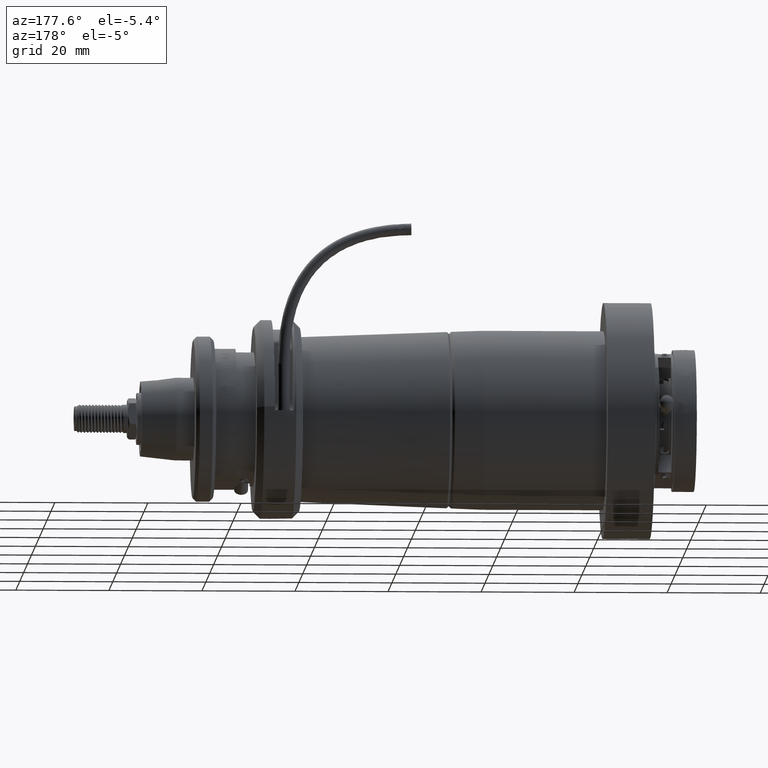
[diagram: clean part render]
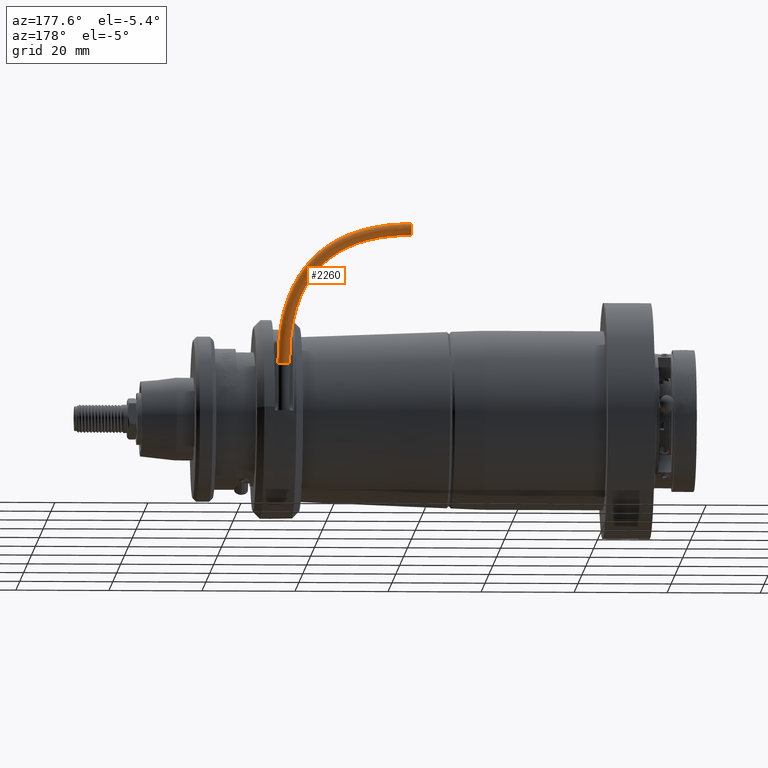
[diagram: same view with one face highlighted and labeled with its STEP entity id]
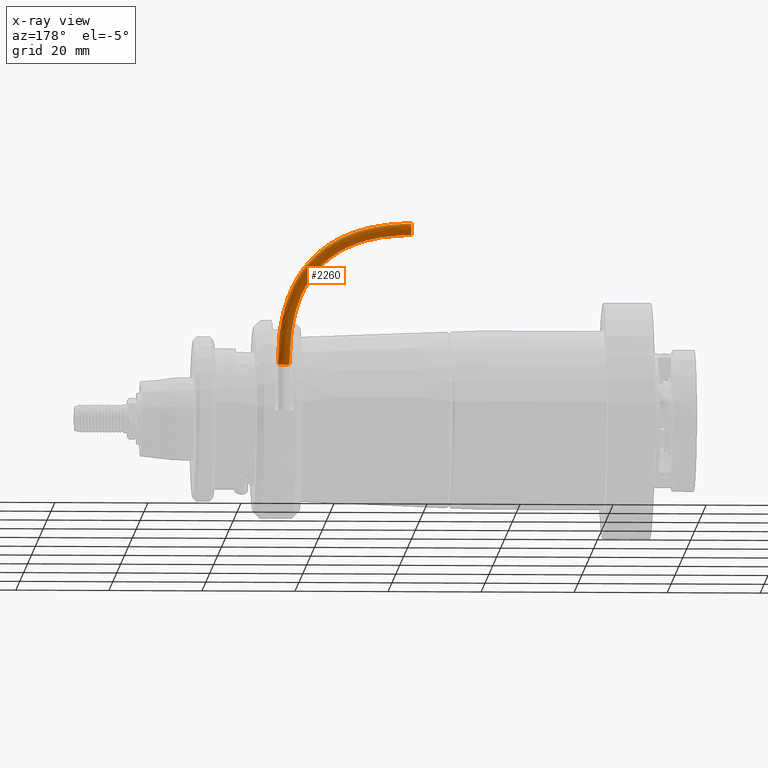
[diagram: x-ray of the same camera — body ghosted, the highlighted face saturated]
A machine part, auxiliary view. The second image highlights one B-rep face of the part: STEP entity #2260.
The next image is the same camera in x-ray: the body ghosted, the highlighted face saturated — about 0% of this face is hidden behind the body in this view.
In plain terms, the highlighted face is a freeform B-spline surface patch.
Its self-contained STEP definition (entity closure, byte-faithful):
#2260 = ADVANCED_FACE ( 'NONE', ( #53279, #21500 ), #15614, .T. ) ;
#4649 = CARTESIAN_POINT ( 'NONE',  ( 66.64089540670664700, 17.62272806749895100, 24.97301191836450600 ) ) ;
#4828 = CARTESIAN_POINT ( 'NONE',  ( 63.94942320065381100, 15.13853759384503500, 29.37182688259371600 ) ) ;
#5515 = CARTESIAN_POINT ( 'NONE',  ( 69.83772968708936400, 17.60389857050899200, 9.793155962302430200 ) ) ;
#5832 = CARTESIAN_POINT ( 'NONE',  ( 66.08475221287514500, 17.62600377580153600, 19.22859312941218200 ) ) ;
#6481 = DIRECTION ( 'NONE',  ( -0.9999042499354224800, 0.005889480784143533800, 0.01252217940988983500 ) ) ;
#7785 = CARTESIAN_POINT ( 'NONE',  ( 67.11241758635038900, 17.61995078075725700, 13.85232591598955000 ) ) ;
#10662 = CARTESIAN_POINT ( 'NONE',  ( 67.32078723207428100, 15.11868010881016000, 7.644823032608476500 ) ) ;
#11431 = CARTESIAN_POINT ( 'NONE',  ( 46.11150311341309300, 17.74364710692628200, 38.96341796109737700 ) ) ;
#11645 = CARTESIAN_POINT ( 'NONE',  ( 50.76960039404492200, 17.71621070546412100, 35.36589931606382500 ) ) ;
#12352 = CARTESIAN_POINT ( 'NONE',  ( 69.82300483061835900, 15.10394193516471100, 9.793155962302430200 ) ) ;
#15458 = CARTESIAN_POINT ( 'NONE',  ( 41.93773100670296800, 15.26818744602951300, 39.26238002865999700 ) ) ;
#15614 =( BOUNDED_SURFACE ( )  B_SPLINE_SURFACE ( 3, 3, ( 
 ( #10662, #42378, #49947, #63421, #20737, #53407, #67237, #21461, #48130, #35812, #52673, #39131 ),
 ( #63700, #12352, #27536, #27154, #20569, #4828, #38307, #15910, #47847, #30236, #15458, #48944 ),
 ( #23579, #5515, #55164, #40145, #4649, #48504, #61659, #58534, #26993, #11431, #66107, #36975 ),
 ( #54256, #33908, #7785, #5832, #32703, #21865, #18730, #58370, #11645, #68150, #68543, #68008 ),
 ( #67930, #67943, #68616, #68302, #68401, #68386, #68324, #68240, #68090, #67846, #67787, #67721 ),
 ( #67705, #67628, #67512, #67498, #67432, #67411, #67356, #67284, #67213, #67194, #67134, #67055 ),
 ( #66990, #66972, #66833, #66770, #66609, #66521, #66456, #66383, #66319, #66300, #66239, #66073 ) ),
 .UNSPECIFIED., .T., .F., .F. ) 
 B_SPLINE_SURFACE_WITH_KNOTS ( ( 4, 3, 4 ),
 ( 4, 1, 1, 1, 1, 1, 1, 1, 1, 4 ),
 ( 0.0000000000000000000, 0.5000000000000000000, 1.000000000000000000 ),
 ( 0.0000000000000000000, 0.1119999999999534300, 0.2240000000000000900, 0.3360000000000000800, 0.4479999999999890200, 0.5600000000000000500, 0.6700000000000000400, 0.7800000000000000300, 0.8900000000000277700, 1.000000000000000000 ),
 .UNSPECIFIED. ) 
 GEOMETRIC_REPRESENTATION_ITEM ( )  RATIONAL_B_SPLINE_SURFACE ( (
 ( 1.000000000000000000, 1.000000000000000000, 0.9999999999999997800, 1.000000000000000200, 1.000000000000000000, 1.000000000000000200, 0.9999999999999997800, 0.9999999999999997800, 0.9999999999999996700, 1.000000000000000000, 1.000000000000000200, 1.000000000000000200),
 ( 0.3333333333333333700, 0.3333333333333333700, 0.3333333333333332600, 0.3333333333333334300, 0.3333333333333333700, 0.3333333333333334300, 0.3333333333333333100, 0.3333333333333333700, 0.3333333333333332600, 0.3333333333333334300, 0.3333333333333334300, 0.3333333333333334300),
 ( 0.3333333333333333700, 0.3333333333333333700, 0.3333333333333332600, 0.3333333333333334300, 0.3333333333333333700, 0.3333333333333334300, 0.3333333333333333100, 0.3333333333333333700, 0.3333333333333332600, 0.3333333333333334300, 0.3333333333333334300, 0.3333333333333334300),
 ( 1.000000000000000000, 1.000000000000000000, 0.9999999999999997800, 1.000000000000000200, 1.000000000000000000, 1.000000000000000200, 0.9999999999999997800, 0.9999999999999997800, 0.9999999999999996700, 1.000000000000000000, 1.000000000000000200, 1.000000000000000200),
 ( 0.3333333333333333700, 0.3333333333333333700, 0.3333333333333332600, 0.3333333333333334300, 0.3333333333333333700, 0.3333333333333334300, 0.3333333333333333100, 0.3333333333333333700, 0.3333333333333332600, 0.3333333333333334300, 0.3333333333333334300, 0.3333333333333334300),
 ( 0.3333333333333333700, 0.3333333333333333700, 0.3333333333333332600, 0.3333333333333334300, 0.3333333333333333700, 0.3333333333333334300, 0.3333333333333333100, 0.3333333333333333700, 0.3333333333333332600, 0.3333333333333334300, 0.3333333333333334300, 0.3333333333333334300),
 ( 1.000000000000000000, 1.000000000000000000, 0.9999999999999997800, 1.000000000000000200, 1.000000000000000000, 1.000000000000000200, 0.9999999999999997800, 0.9999999999999997800, 0.9999999999999996700, 1.000000000000000000, 1.000000000000000200, 1.000000000000000200) ) ) 
 REPRESENTATION_ITEM ( '' )  SURFACE ( )  );
#15910 = CARTESIAN_POINT ( 'NONE',  ( 56.30306284005470000, 15.18357499859184200, 35.79576248497982500 ) ) ;
#18730 = CARTESIAN_POINT ( 'NONE',  ( 58.88239495621888900, 17.66842598239417200, 31.06318987142426400 ) ) ;
#20569 = CARTESIAN_POINT ( 'NONE',  ( 66.62617055023562800, 15.12277143215467000, 24.97301191836450600 ) ) ;
#20737 = CARTESIAN_POINT ( 'NONE',  ( 64.35272980754537300, 15.13616209987993200, 23.89237262572712700 ) ) ;
#21461 = CARTESIAN_POINT ( 'NONE',  ( 55.13263389112538000, 15.19046887748511100, 33.56571678719285500 ) ) ;
#21500 = FACE_OUTER_BOUND ( 'NONE', #54768, .T. ) ;
#21865 = CARTESIAN_POINT ( 'NONE',  ( 61.96052493977463600, 17.65029565902528900, 27.84366440493357000 ) ) ;
#22299 = CARTESIAN_POINT ( 'NONE',  ( 67.32814966030977600, 16.36865842648230200, 7.644823032608476500 ) ) ;
#23579 = CARTESIAN_POINT ( 'NONE',  ( 69.83546872388956200, 17.60391188768343100, 7.644823032608477400 ) ) ;
#24860 = CIRCLE ( 'NONE', #35110, 1.249999999999999300 ) ;
#26993 = CARTESIAN_POINT ( 'NONE',  ( 51.48479040916397100, 17.71199820426580700, 37.77103374153023900 ) ) ;
#27154 = CARTESIAN_POINT ( 'NONE',  ( 68.49512085695616300, 15.11176323120076900, 19.86911388413704000 ) ) ;
#27536 = CARTESIAN_POINT ( 'NONE',  ( 69.58841668079796200, 15.10532366986645400, 14.18073213748243500 ) ) ;
#27610 = DIRECTION ( 'NONE',  ( -0.005889942588399591600, -0.9999826541377132600, 0.0000000000000000000 ) ) ;
#28533 = ORIENTED_EDGE ( 'NONE', *, *, #67116, .F. ) ;
#30236 = CARTESIAN_POINT ( 'NONE',  ( 46.09677825694208100, 15.24369047158200100, 38.96341796109737700 ) ) ;
#32703 = CARTESIAN_POINT ( 'NONE',  ( 64.36745466401639200, 17.63611873522421900, 23.89237262572712700 ) ) ;
#33242 = CIRCLE ( 'NONE', #37755, 1.249999999999999300 ) ;
#33870 = ORIENTED_EDGE ( 'NONE', *, *, #64431, .T. ) ;
#33908 = CARTESIAN_POINT ( 'NONE',  ( 67.33777305174508900, 17.61862342698000500, 9.793155962302430200 ) ) ;
#35110 = AXIS2_PLACEMENT_3D ( 'NONE', #22299, #58966, #27610 ) ;
#35812 = CARTESIAN_POINT ( 'NONE',  ( 45.71189482096969700, 15.24595745224584100, 36.47881292138485800 ) ) ;
#36975 = CARTESIAN_POINT ( 'NONE',  ( 39.93885110944662400, 17.78000430349476700, 39.28971676865886300 ) ) ;
#37755 = AXIS2_PLACEMENT_3D ( 'NONE', #38264, #6481, #43504 ) ;
#38264 = CARTESIAN_POINT ( 'NONE',  ( 39.90018377570641000, 16.53021037311714600, 36.78991278256462000 ) ) ;
#38307 = CARTESIAN_POINT ( 'NONE',  ( 60.48339791631121200, 15.15895263789631300, 32.99726918752963900 ) ) ;
#39131 = CARTESIAN_POINT ( 'NONE',  ( 39.89282134747089300, 15.28023205544500100, 36.78991278256462700 ) ) ;
#40145 = CARTESIAN_POINT ( 'NONE',  ( 68.50984571342716800, 17.61171986654504800, 19.86911388413704000 ) ) ;
#42378 = CARTESIAN_POINT ( 'NONE',  ( 67.32304819527408300, 15.11866679163572200, 9.793155962302430200 ) ) ;
#43504 = DIRECTION ( 'NONE',  ( -0.005889942588405142800, -0.9999826541377132600, 0.0000000000000000000 ) ) ;
#47847 = CARTESIAN_POINT ( 'NONE',  ( 51.47006555269295800, 15.21204156892152200, 37.77103374153023900 ) ) ;
#48130 = CARTESIAN_POINT ( 'NONE',  ( 50.75487553757390900, 15.21625407011984300, 35.36589931606382500 ) ) ;
#48332 = EDGE_LOOP ( 'NONE', ( #33870 ) ) ;
#48489 = CARTESIAN_POINT ( 'NONE',  ( 67.32078723207428100, 15.11868010881016000, 7.644823032608476500 ) ) ;
#48504 = CARTESIAN_POINT ( 'NONE',  ( 63.96414805712478800, 17.63849422918932700, 29.37182688259371600 ) ) ;
#48703 = CARTESIAN_POINT ( 'NONE',  ( 39.89282134747090000, 15.28023205544500500, 36.78991278256462000 ) ) ;
#48944 = CARTESIAN_POINT ( 'NONE',  ( 39.92412625297561100, 15.28004766815048600, 39.28971676865886300 ) ) ;
#49947 = CARTESIAN_POINT ( 'NONE',  ( 67.09769272987938400, 15.11999414541297400, 13.85232591598955000 ) ) ;
#52258 = VERTEX_POINT ( 'NONE', #48489 ) ;
#52673 = CARTESIAN_POINT ( 'NONE',  ( 41.90642610119825000, 15.26837183332402700, 36.76257604256576200 ) ) ;
#53279 = FACE_OUTER_BOUND ( 'NONE', #48332, .T. ) ;
#53407 = CARTESIAN_POINT ( 'NONE',  ( 61.94580008330362400, 15.15033902368101000, 27.84366440493357000 ) ) ;
#54256 = CARTESIAN_POINT ( 'NONE',  ( 67.33551208854528600, 17.61863674415444300, 7.644823032608476500 ) ) ;
#54768 = EDGE_LOOP ( 'NONE', ( #28533 ) ) ;
#55164 = CARTESIAN_POINT ( 'NONE',  ( 69.60314153726896800, 17.60528030521074100, 14.18073213748243500 ) ) ;
#57406 = VERTEX_POINT ( 'NONE', #48703 ) ;
#58370 = CARTESIAN_POINT ( 'NONE',  ( 55.14735874759639200, 17.69042551282939300, 33.56571678719285500 ) ) ;
#58534 = CARTESIAN_POINT ( 'NONE',  ( 56.31778769652571300, 17.68353163393612000, 35.79576248497982500 ) ) ;
#58966 = DIRECTION ( 'NONE',  ( 0.0000000000000000000, 0.0000000000000000000, 1.000000000000000000 ) ) ;
#61659 = CARTESIAN_POINT ( 'NONE',  ( 60.49812277278222400, 17.65890927324059900, 32.99726918752963900 ) ) ;
#63421 = CARTESIAN_POINT ( 'NONE',  ( 66.07002735640414000, 15.12604714045725300, 19.22859312941218200 ) ) ;
#63700 = CARTESIAN_POINT ( 'NONE',  ( 69.82074386741855700, 15.10395525233915100, 7.644823032608477400 ) ) ;
#64431 = EDGE_CURVE ( 'NONE', #52258, #52258, #24860, .T. ) ;
#66073 = CARTESIAN_POINT ( 'NONE',  ( 39.89282134747089300, 15.28023205544500100, 36.78991278256462700 ) ) ;
#66107 = CARTESIAN_POINT ( 'NONE',  ( 41.95245586317398100, 17.76814408137379800, 39.26238002865999700 ) ) ;
#66239 = CARTESIAN_POINT ( 'NONE',  ( 41.90642610119825000, 15.26837183332402700, 36.76257604256576200 ) ) ;
#66300 = CARTESIAN_POINT ( 'NONE',  ( 45.71189482096969700, 15.24595745224584100, 36.47881292138485800 ) ) ;
#66319 = CARTESIAN_POINT ( 'NONE',  ( 50.75487553757390900, 15.21625407011984300, 35.36589931606382500 ) ) ;
#66383 = CARTESIAN_POINT ( 'NONE',  ( 55.13263389112538000, 15.19046887748511100, 33.56571678719285500 ) ) ;
#66456 = CARTESIAN_POINT ( 'NONE',  ( 58.86767009974788300, 15.16846934704988900, 31.06318987142426400 ) ) ;
#66521 = CARTESIAN_POINT ( 'NONE',  ( 61.94580008330362400, 15.15033902368101000, 27.84366440493357000 ) ) ;
#66609 = CARTESIAN_POINT ( 'NONE',  ( 64.35272980754537300, 15.13616209987993200, 23.89237262572712700 ) ) ;
#66770 = CARTESIAN_POINT ( 'NONE',  ( 66.07002735640414000, 15.12604714045725300, 19.22859312941218200 ) ) ;
#66833 = CARTESIAN_POINT ( 'NONE',  ( 67.09769272987938400, 15.11999414541297400, 13.85232591598955000 ) ) ;
#66972 = CARTESIAN_POINT ( 'NONE',  ( 67.32304819527408300, 15.11866679163572200, 9.793155962302430200 ) ) ;
#66990 = CARTESIAN_POINT ( 'NONE',  ( 67.32078723207428100, 15.11868010881016000, 7.644823032608476500 ) ) ;
#67055 = CARTESIAN_POINT ( 'NONE',  ( 39.86151644196616700, 15.28041644273951900, 34.29010879647038500 ) ) ;
#67116 = EDGE_CURVE ( 'NONE', #57406, #57406, #33242, .T. ) ;
#67134 = CARTESIAN_POINT ( 'NONE',  ( 41.87512119569352400, 15.26855622061854600, 34.26277205647151900 ) ) ;
#67194 = CARTESIAN_POINT ( 'NONE',  ( 45.32701138499732000, 15.24822443290968200, 33.99420788167233100 ) ) ;
#67213 = CARTESIAN_POINT ( 'NONE',  ( 50.03968552245482500, 15.22046657131815200, 32.96076489059740300 ) ) ;
#67237 = CARTESIAN_POINT ( 'NONE',  ( 58.86767009974788300, 15.16846934704988900, 31.06318987142426400 ) ) ;
#67284 = CARTESIAN_POINT ( 'NONE',  ( 53.96220494219610200, 15.19736275637838600, 31.33567108940585700 ) ) ;
#67356 = CARTESIAN_POINT ( 'NONE',  ( 57.25194228318453300, 15.17798605620345900, 29.12911055531888100 ) ) ;
#67411 = CARTESIAN_POINT ( 'NONE',  ( 59.94217696595346500, 15.16214045351697900, 26.31550192727341700 ) ) ;
#67432 = CARTESIAN_POINT ( 'NONE',  ( 62.07928906485511100, 15.14955276760519500, 22.81173333308975200 ) ) ;
#67498 = CARTESIAN_POINT ( 'NONE',  ( 63.64493385585210900, 15.14033104971374000, 18.58807237468731100 ) ) ;
#67512 = CARTESIAN_POINT ( 'NONE',  ( 64.60696877896082000, 15.13466462095950100, 13.52391969449667300 ) ) ;
#67628 = CARTESIAN_POINT ( 'NONE',  ( 64.82309155992979300, 15.13339164810673100, 9.793155962302430200 ) ) ;
#67705 = CARTESIAN_POINT ( 'NONE',  ( 64.82083059672999100, 15.13340496528117100, 7.644823032608477400 ) ) ;
#67721 = CARTESIAN_POINT ( 'NONE',  ( 39.87624129843717900, 17.78037307808379500, 34.29010879647038500 ) ) ;
#67787 = CARTESIAN_POINT ( 'NONE',  ( 41.88984605216453600, 17.76851285596282500, 34.26277205647151900 ) ) ;
#67846 = CARTESIAN_POINT ( 'NONE',  ( 45.34173624146833200, 17.74818106825396000, 33.99420788167233100 ) ) ;
#67930 = CARTESIAN_POINT ( 'NONE',  ( 64.83555545320098200, 17.63336160062545600, 7.644823032608477400 ) ) ;
#67943 = CARTESIAN_POINT ( 'NONE',  ( 64.83781641640081300, 17.63334828345101700, 9.793155962302430200 ) ) ;
#68008 = CARTESIAN_POINT ( 'NONE',  ( 39.90754620394190500, 17.78018869078928100, 36.78991278256462700 ) ) ;
#68090 = CARTESIAN_POINT ( 'NONE',  ( 50.05441037892583700, 17.72042320666244200, 32.96076489059740300 ) ) ;
#68150 = CARTESIAN_POINT ( 'NONE',  ( 45.72661967744070900, 17.74591408759012300, 36.47881292138485800 ) ) ;
#68240 = CARTESIAN_POINT ( 'NONE',  ( 53.97692979866711500, 17.69731939172266900, 31.33567108940585700 ) ) ;
#68302 = CARTESIAN_POINT ( 'NONE',  ( 63.65965871232312200, 17.64028768505802700, 18.58807237468731100 ) ) ;
#68324 = CARTESIAN_POINT ( 'NONE',  ( 57.26666713965554600, 17.67794269154774500, 29.12911055531888100 ) ) ;
#68386 = CARTESIAN_POINT ( 'NONE',  ( 59.95690182242447700, 17.66209708886125900, 26.31550192727341700 ) ) ;
#68401 = CARTESIAN_POINT ( 'NONE',  ( 62.09401392132612300, 17.64950940294948000, 22.81173333308975200 ) ) ;
#68543 = CARTESIAN_POINT ( 'NONE',  ( 41.92115095766926200, 17.76832846866831200, 36.76257604256576200 ) ) ;
#68616 = CARTESIAN_POINT ( 'NONE',  ( 64.62169363543183900, 17.63462125630378800, 13.52391969449667300 ) ) ;